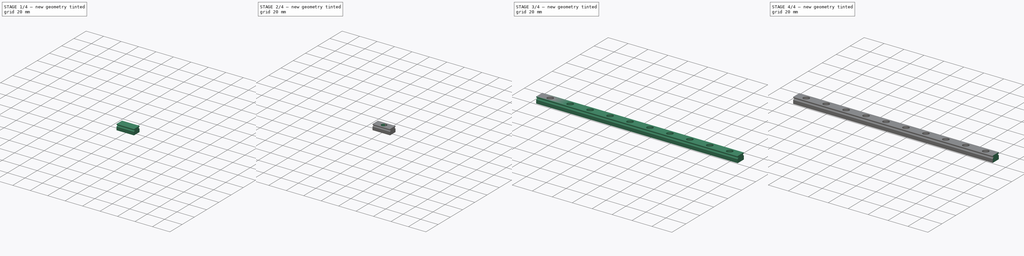
[diagram: build sequence overview — one tinted view per stage of 4, left to right]
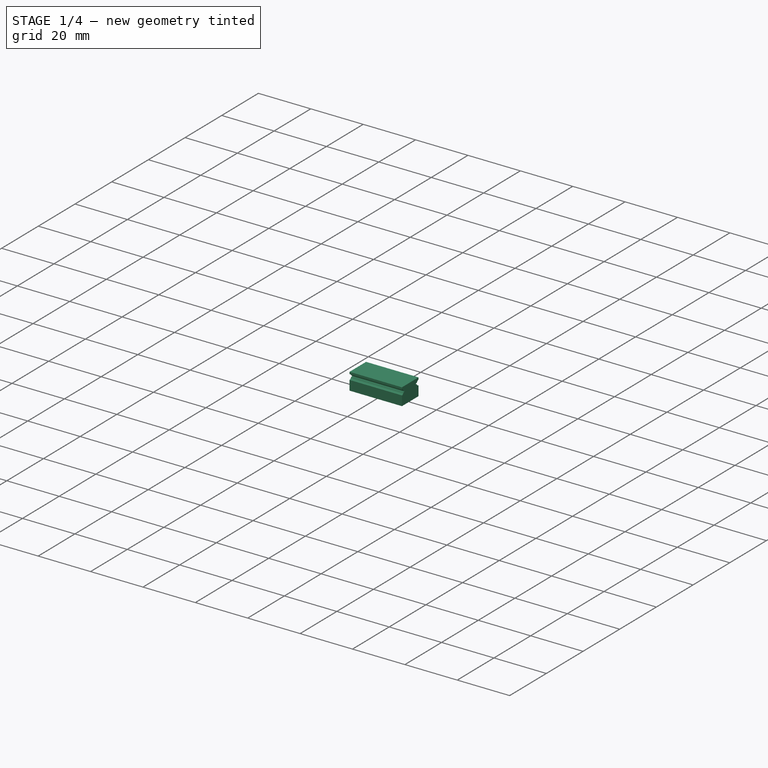
[diagram: stage 1 of 4 — iso view after this stage's code; geometry added in this stage tinted green]
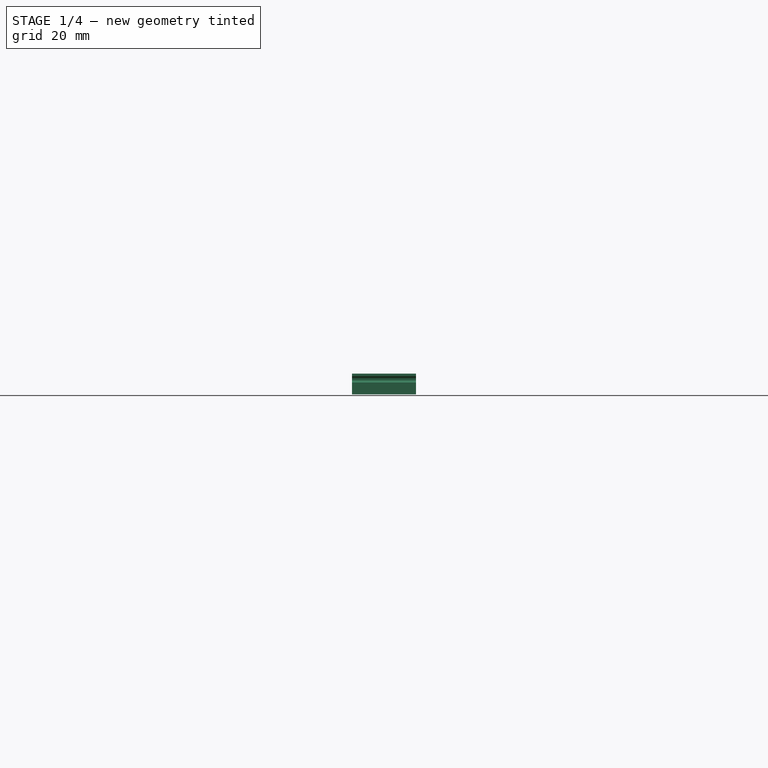
[diagram: stage 1 of 4 — front view after this stage's code; geometry added in this stage tinted green]
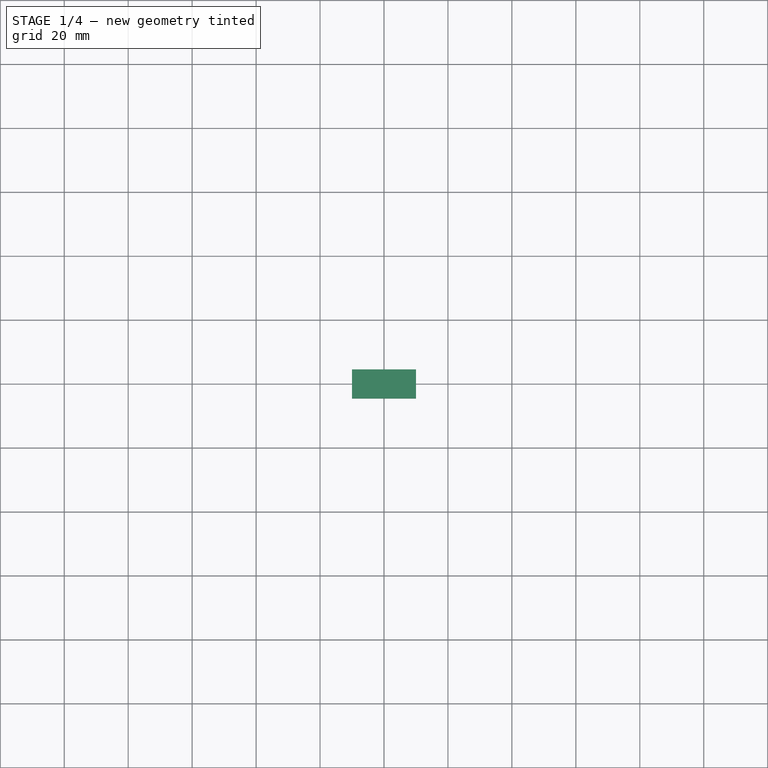
[diagram: stage 1 of 4 — top view after this stage's code; geometry added in this stage tinted green]
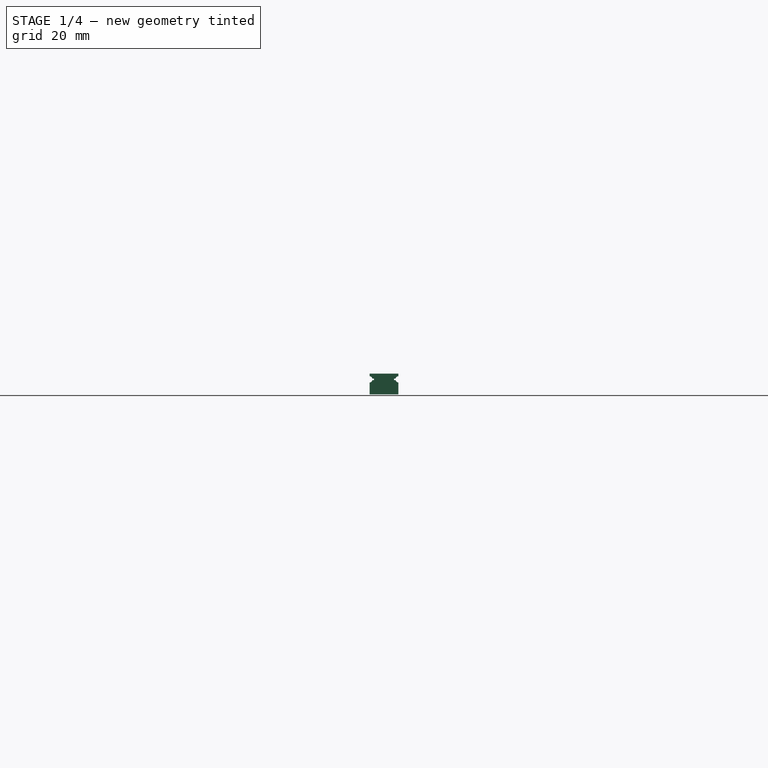
[diagram: stage 1 of 4 — right view after this stage's code; geometry added in this stage tinted green]
FCSTD DOCUMENT  (FreeCAD 0.20R29410 (Git))
Label: mgn9
License: Public Domain
LicenseURL: http://en.wikipedia.org/wiki/Public_domain
objects: PartDesign::Pocket×5, Sketcher::SketchObject×4, PartDesign::Pad×3, App::TextDocument×2, PartDesign::Plane×1, PartDesign::Chamfer×1, Spreadsheet::Sheet×1, PartDesign::LinearPattern×1, Part::Feature×1, PartDesign::Body×1, App::Part×1
note: 26 computed .brp shape members not serialized (recipe doc carries the construction recipe); baked Part::Feature solids carry a one-line shape summary decoded from their .brp

FEATURE [Sketcher::SketchObject] Sketch
  FullyConstrained = true
  MapMode = 5
  Placement = pos=(0,0,0) rot=(0.57735,0.57735,0.57735;2.0944rad)
  Support = -> [YZ_Plane]
  sketch-geometry (4):
    g0: LineSegment StartX=-4.5 StartY=0 StartZ=0 EndX=4.5 EndY=0 EndZ=0
    g1: LineSegment StartX=4.5 StartY=0 StartZ=0 EndX=4.5 EndY=6.5 EndZ=0
    g2: LineSegment StartX=4.5 StartY=6.5 StartZ=0 EndX=-4.5 EndY=6.5 EndZ=0
    g3: LineSegment StartX=-4.5 StartY=6.5 StartZ=0 EndX=-4.5 EndY=0 EndZ=0
  constraints (11):
    c: Coincident(g0,g1)
    c: Coincident(g1,g2)
    c: Coincident(g2,g3)
    c: Coincident(g3,g0)
    c: Horizontal(g0)
    c: Horizontal(g2)
    c: Vertical(g1)
    c: Vertical(g3)
    c: Symmetric(g0,g0,g-1)
    c: DistanceX(g0,g0) = 9  'width'
    c: DistanceY(g1,g1) = 6.5  'height'
FEATURE [PartDesign::Pad] Pad
  Direction = (1,-2e-16,3e-16)
  Length = 20
  Length2 = 10
  Midplane = true
  Placement = pos=(0,0,0) rot=(0.57735,0.57735,0.57735;2.0944rad)
  Profile = -> Sketch
  ReferenceAxis = -> Sketch [N_Axis]
  Type = 0
  expr: Length = Spreadsheet.piece_length
FEATURE [Sketcher::SketchObject] Sketch001
  FullyConstrained = true
  MapMode = 5
  Placement = pos=(0,0,0) rot=(-0.57735,0.57735,0.57735;4.18879rad)
  Support = -> [YZ_Plane]
  expr: Constraints[13] = 6.5 - 1.8
  sketch-geometry (10):
    g0: ArcOfCircle CenterX=-4.6 CenterY=4.7 CenterZ=0 NormalX=0 NormalY=0 NormalZ=1 AngleXU=0 Radius=1 StartAngle=0.25268 EndAngle=6.03051
    g1: LineSegment StartX=-3.63175 StartY=4.95 StartZ=0 EndX=-3.13175 EndY=4.95 EndZ=0
    g2: LineSegment StartX=-3.13175 StartY=4.95 StartZ=0 EndX=-3.13175 EndY=4.45 EndZ=0
    g3: LineSegment StartX=-3.13175 StartY=4.45 StartZ=0 EndX=-3.63175 EndY=4.45 EndZ=0
    g4: LineSegment StartX=-4.6 StartY=4.7 StartZ=0 EndX=-3.13175 EndY=4.7 EndZ=0
    g5: ArcOfCircle CenterX=4.6 CenterY=4.7 CenterZ=0 NormalX=0 NormalY=0 NormalZ=1 AngleXU=0 Radius=1 StartAngle=3.39427 EndAngle=9.1721
    g6: LineSegment StartX=3.63175 StartY=4.95 StartZ=0 EndX=3.13175 EndY=4.95 EndZ=0
    g7: LineSegment StartX=3.13175 StartY=4.95 StartZ=0 EndX=3.13175 EndY=4.45 EndZ=0
    g8: LineSegment StartX=3.13175 StartY=4.45 StartZ=0 EndX=3.63175 EndY=4.45 EndZ=0
    g9: LineSegment StartX=4.6 StartY=4.7 StartZ=0 EndX=3.13175 EndY=4.7 EndZ=0
  constraints (29):
    c: Horizontal(g1)
    c: Coincident(g2,g1)
    c: Vertical(g2)
    c: Coincident(g3,g2)
    c: Horizontal(g3)
    c: Coincident(g4,g0)
    c: Horizontal(g4)
    c: Symmetric(g2,g1,g4)
    c: Coincident(g0,g3)
    c: Coincident(g0,g1)
    c: DistanceY(g2,g2) = 0.5
    c: DistanceX(g1,g1) = 0.5
    c: Diameter(g0) = 2
    c: DistanceY(g-1,g0) = 4.7
    c: DistanceX(g0,g-1) = 4.6
    c: Horizontal(g6)
    c: Coincident(g7,g6)
    c: Vertical(g7)
    c: Coincident(g8,g7)
    c: Horizontal(g8)
    c: Coincident(g9,g5)
    c: Horizontal(g9)
    c: Symmetric(g7,g6,g9)
    c: Coincident(g5,g8)
    c: Coincident(g5,g6)
    c: Diameter(g5) = 2
    c: Symmetric(g4,g9,g-2)
    c: Equal(g2,g7)
    c: Equal(g1,g6)
FEATURE [PartDesign::Pocket] Pocket  label="Balls cut"
  BaseFeature = -> Pad
  Direction = (1,-2e-16,3e-16)
  Length = 5
  Length2 = 5
  Midplane = true
  Placement = pos=(0,0,0) rot=(0.57735,0.57735,0.57735;2.0944rad)
  Profile = -> Sketch001
  ReferenceAxis = -> Sketch001 [N_Axis]
  Type = 1
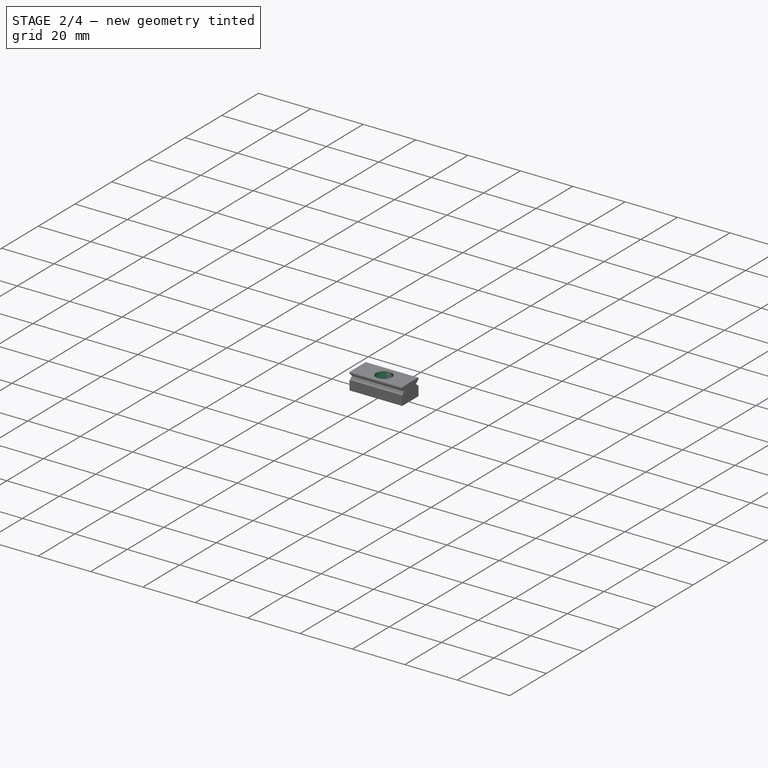
[diagram: stage 2 of 4 — iso view after this stage's code; geometry added in this stage tinted green]
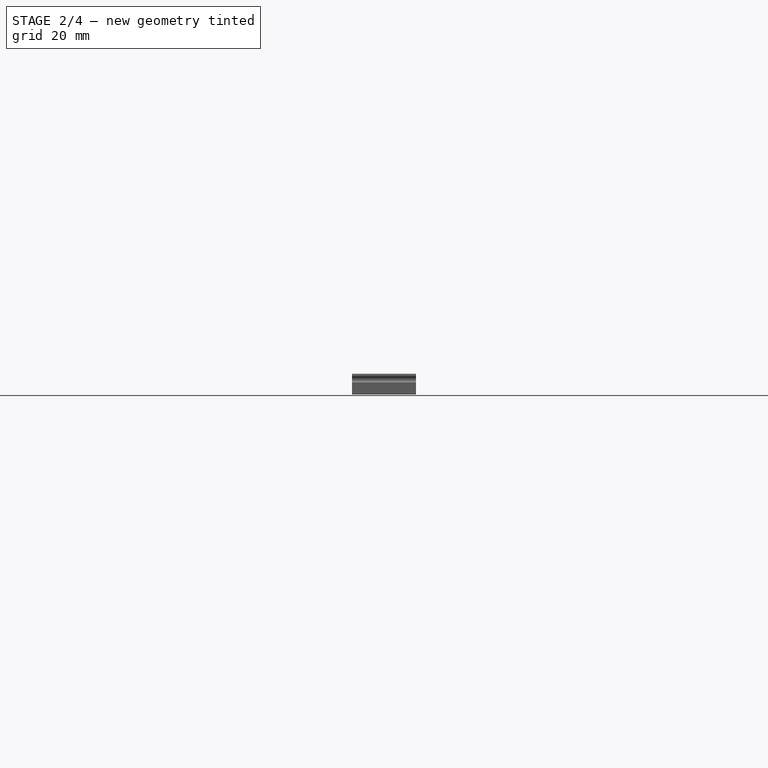
[diagram: stage 2 of 4 — front view after this stage's code; geometry added in this stage tinted green]
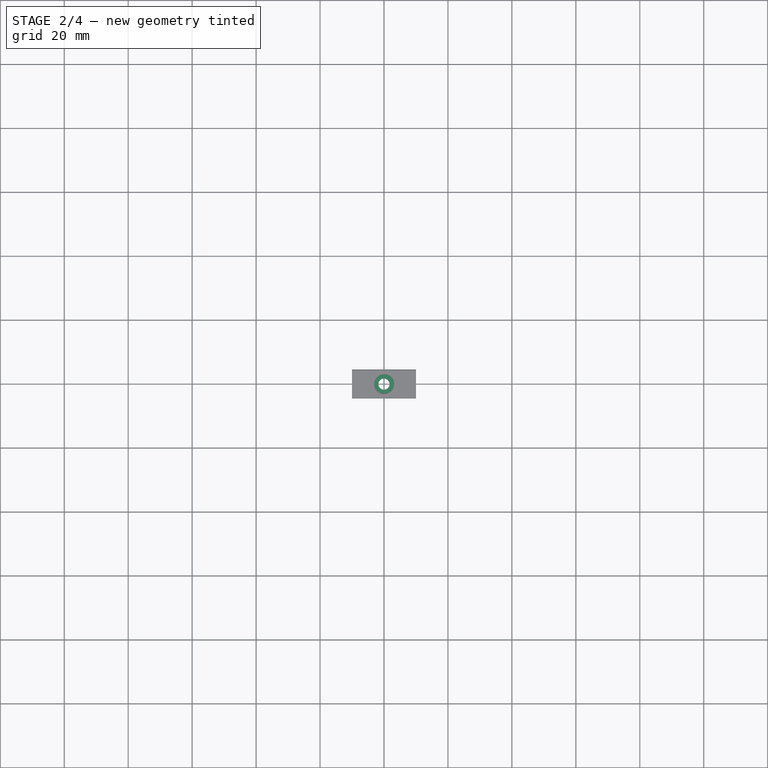
[diagram: stage 2 of 4 — top view after this stage's code; geometry added in this stage tinted green]
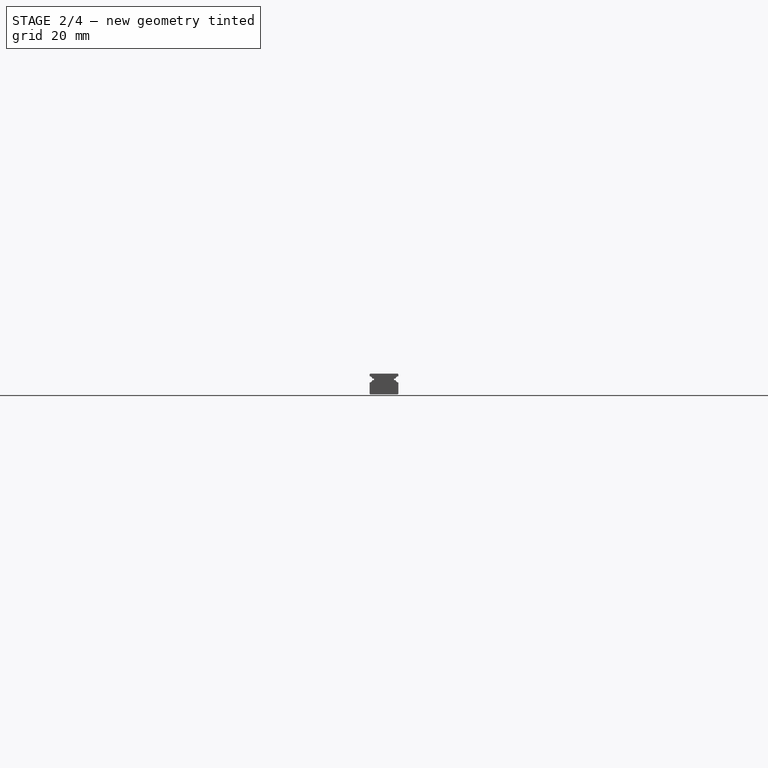
[diagram: stage 2 of 4 — right view after this stage's code; geometry added in this stage tinted green]
FEATURE [Sketcher::SketchObject] Sketch002
  FullyConstrained = true
  MapMode = 5
  Support = -> [XY_Plane]
  sketch-geometry (1):
    g0: Circle CenterX=0 CenterY=0 CenterZ=0 NormalX=0 NormalY=0 NormalZ=1 AngleXU=0 Radius=1.75
  constraints (2):
    c: Coincident(g0,g-1)
    c: Diameter(g0) = 3.5
FEATURE [PartDesign::Pocket] Pocket001  label="Screw hole"
  BaseFeature = -> Pocket
  Direction = (0,0,-1)
  Length = 5
  Length2 = 5
  Midplane = true
  Placement = pos=(0,0,0) rot=(0.57735,0.57735,0.57735;2.0944rad)
  Profile = -> Sketch002
  ReferenceAxis = -> Sketch002 [N_Axis]
  Type = 1
FEATURE [PartDesign::Plane] DatumPlane
  AttachmentOffset = pos=(0,0,6.5) rot=(0,0,1;0rad)
  Length = 235.736
  MapMode = 5
  Placement = pos=(0,0,6.5) rot=(0,0,1;0rad)
  ResizeMode = 0
  Support = -> [XY_Plane]
  Width = 70.7364
  expr: .AttachmentOffset.Base.z = Sketch.Constraints.height
FEATURE [Sketcher::SketchObject] Sketch003
  FullyConstrained = true
  MapMode = 5
  Placement = pos=(0,0,6.5) rot=(0,0,1;0rad)
  Support = -> [DatumPlane]
  sketch-geometry (1):
    g0: Circle CenterX=0 CenterY=0 CenterZ=0 NormalX=0 NormalY=0 NormalZ=1 AngleXU=0 Radius=3
  constraints (2):
    c: Coincident(g0,g-1)
    c: Diameter(g0) = 6
FEATURE [PartDesign::Pocket] Pocket002  label="Screw head cut"
  BaseFeature = -> Pocket001
  Direction = (0,0,-1)
  Length = 3.5
  Length2 = 5
  Placement = pos=(0,0,0) rot=(0.57735,0.57735,0.57735;2.0944rad)
  Profile = -> Sketch003
  ReferenceAxis = -> Sketch003 [N_Axis]
  Type = 0
FEATURE [PartDesign::Chamfer] Chamfer
  Angle = 45
  Base = -> Pocket002 [Edge1,Edge4,Edge5,Edge45,Edge46,Edge47]
  BaseFeature = -> Pocket002
  ChamferType = 0
  FlipDirection = false
  Placement = pos=(0,0,0) rot=(0.57735,0.57735,0.57735;2.0944rad)
  Size = 0.2
  Size2 = 1
  SupportTransform = false
  UseAllEdges = false
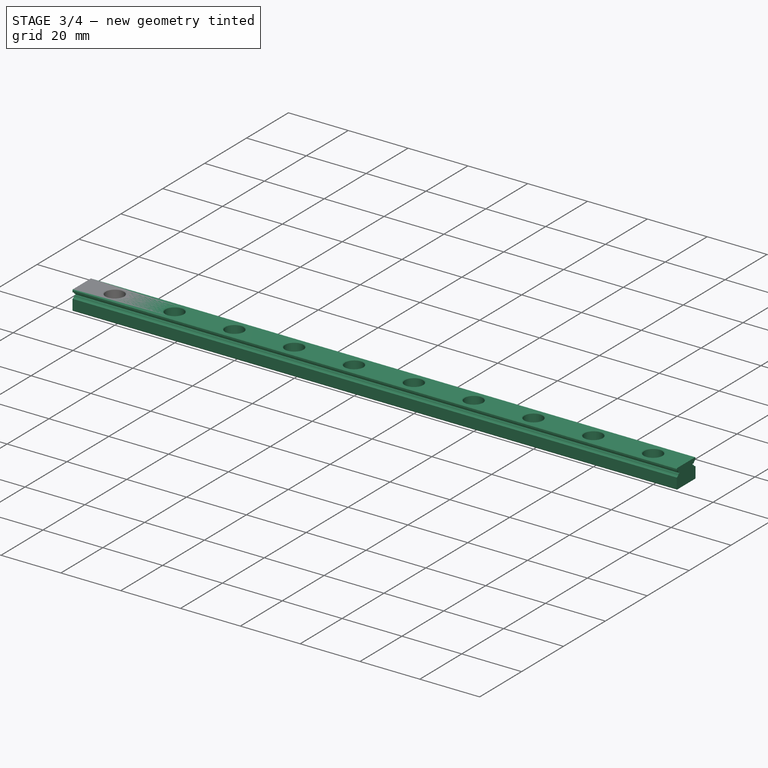
[diagram: stage 3 of 4 — iso view after this stage's code; geometry added in this stage tinted green]
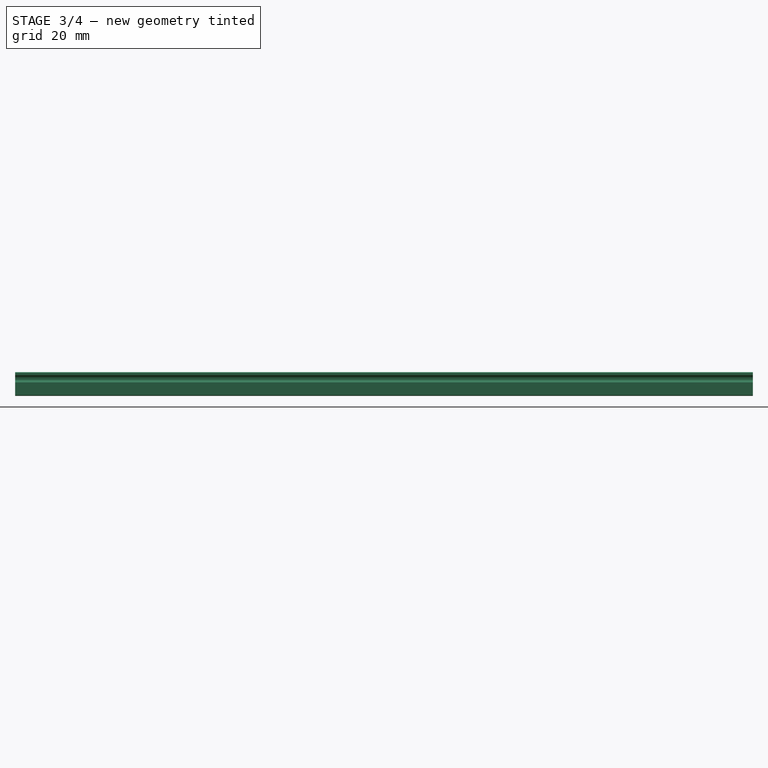
[diagram: stage 3 of 4 — front view after this stage's code; geometry added in this stage tinted green]
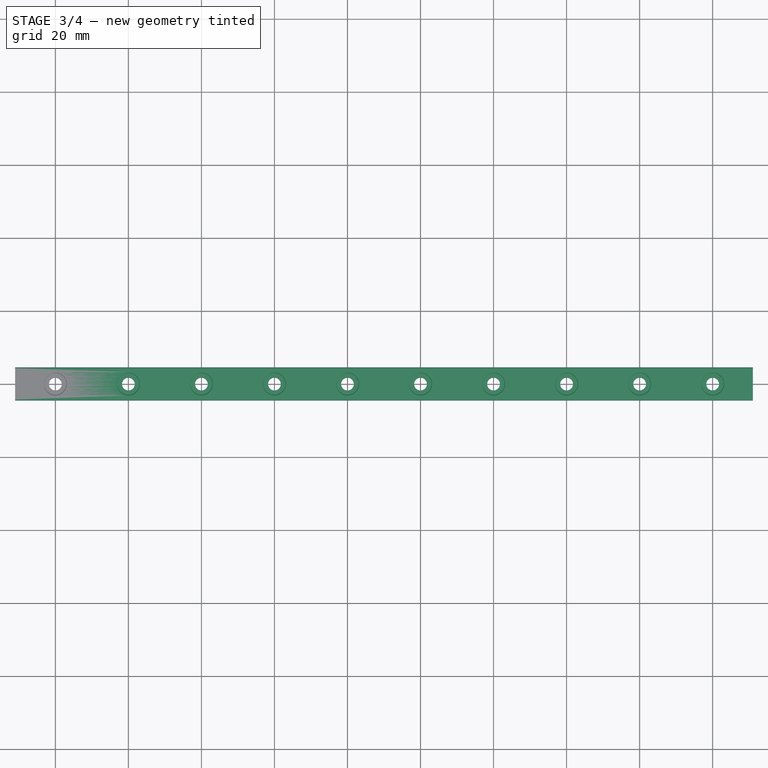
[diagram: stage 3 of 4 — top view after this stage's code; geometry added in this stage tinted green]
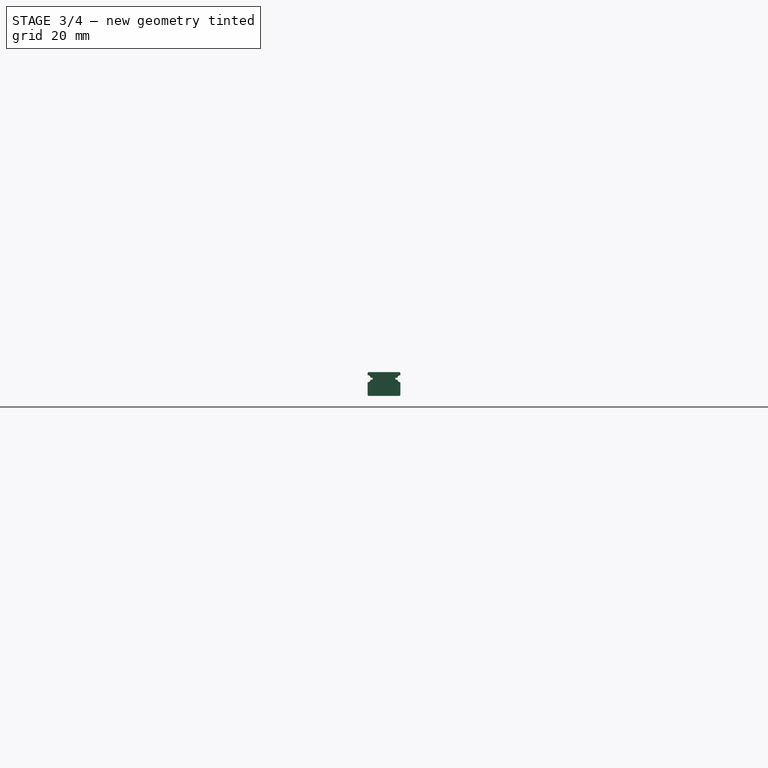
[diagram: stage 3 of 4 — right view after this stage's code; geometry added in this stage tinted green]
FEATURE [Spreadsheet::Sheet] Spreadsheet
  cells = A1=Length, mm; B1=Длина, мм; C1(length)=200; A2=Piece length, mm; B2=Длина куска, мм; C2(piece_length)=20; A3=Piece number; B3=Количество целых кусков; C3(pieces)==ceil(length / C2); D3==length / C2; A4=Cut, mm; B4=Обрезка, мм; C4(cut)==piece_length * pieces - length
FEATURE [PartDesign::LinearPattern] LinearPattern
  BaseFeature = -> Chamfer
  Direction = -> X_Axis
  Length = 180
  Occurrences = 10
  Originals = -> [Pad,Pocket,Pocket001,Pocket002,Chamfer]
  Placement = pos=(0,0,0) rot=(0.57735,0.57735,0.57735;2.0944rad)
  Refine = true
  expr: Length = Spreadsheet.piece_length * (Spreadsheet.pieces - 1)
  expr: Occurrences = Spreadsheet.pieces
FEATURE [Part::Feature] Part002001  label="Hiwin block MGN9H"
  shape: bbox 40.67 x 20.01 x 8.005 mm, 245 faces, 9 solids (baked)
FEATURE [PartDesign::Pad] Pad002  label="fix_zero_cut1"
  BaseFeature = -> LinearPattern
  Direction = (-1,2e-16,-1.6e-15)
  Length = 1
  Length2 = 10
  Placement = pos=(0,0,0) rot=(0.57735,0.57735,0.57735;2.0944rad)
  Profile = -> LinearPattern [Face3]
  Refine = true
  Type = 0
FEATURE [PartDesign::Pad] Pad003  label="fix_zero_cut2"
  BaseFeature = -> Pad002
  Direction = (1,1e-16,8e-16)
  Length = 1
  Length2 = 10
  Placement = pos=(0,0,0) rot=(0.57735,0.57735,0.57735;2.0944rad)
  Profile = -> Pad002 [Face1]
  Refine = true
  Type = 0
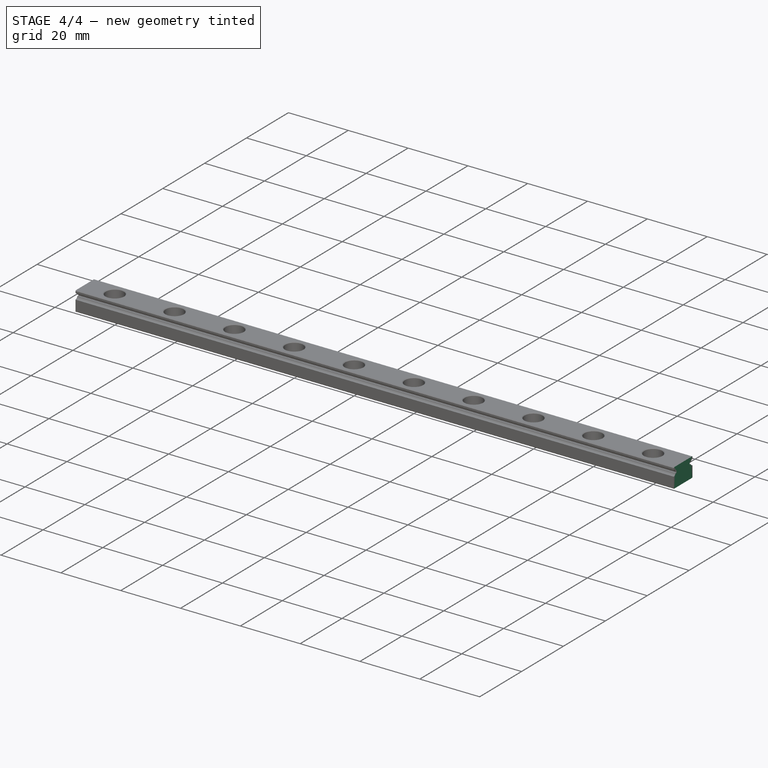
[diagram: stage 4 of 4 — iso view after this stage's code; geometry added in this stage tinted green]
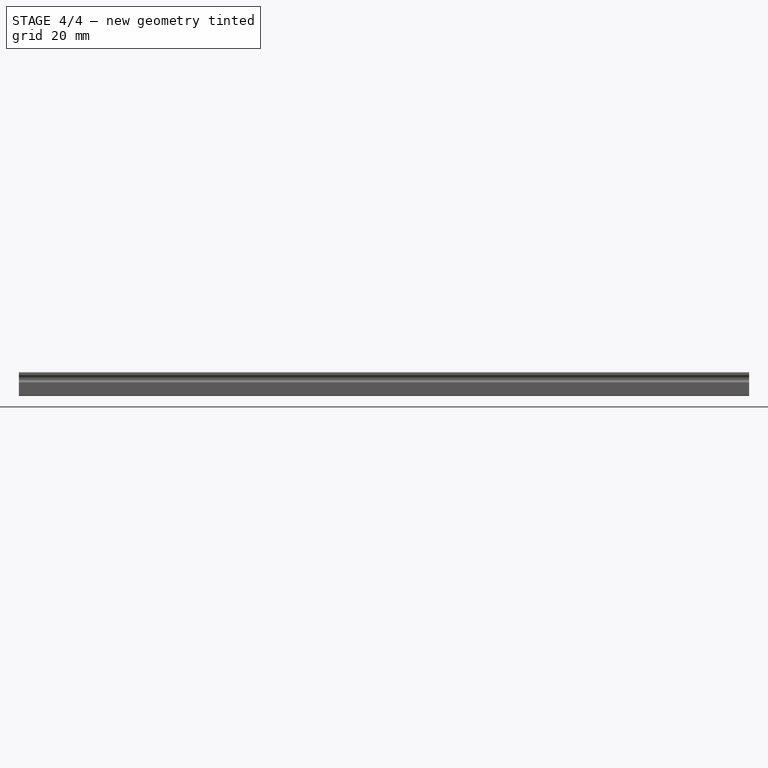
[diagram: stage 4 of 4 — front view after this stage's code; geometry added in this stage tinted green]
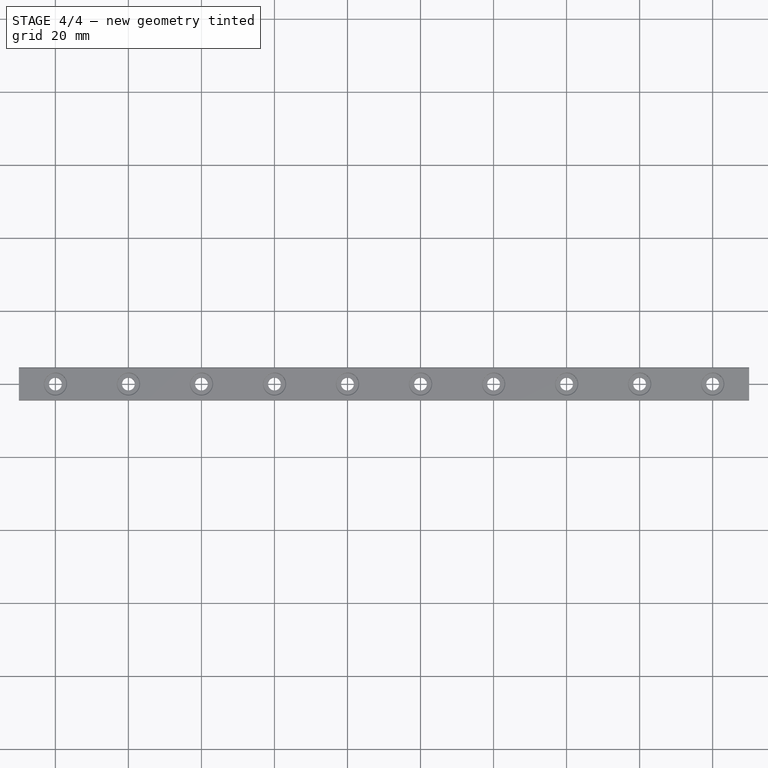
[diagram: stage 4 of 4 — top view after this stage's code; geometry added in this stage tinted green]
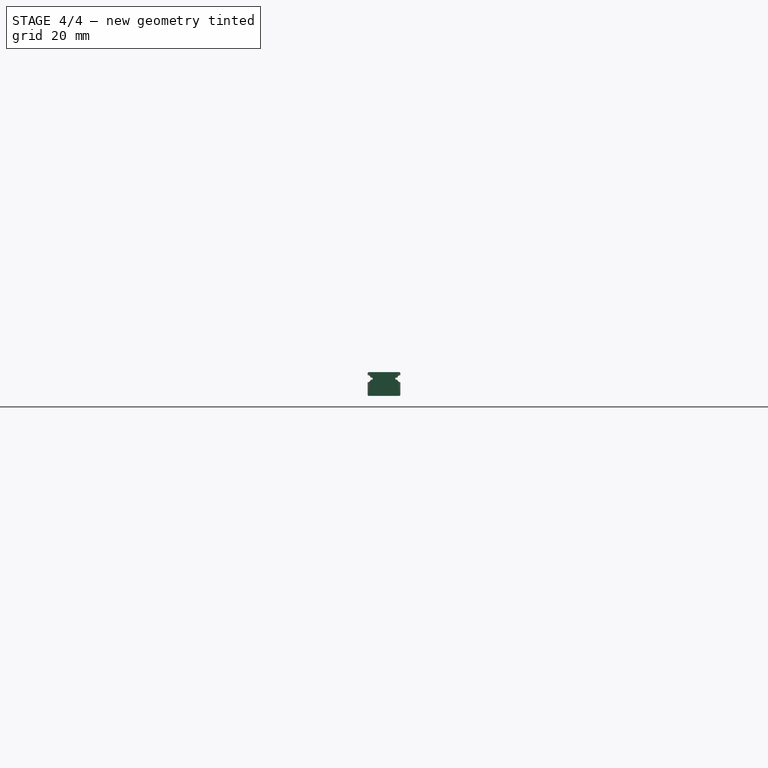
[diagram: stage 4 of 4 — right view after this stage's code; geometry added in this stage tinted green]
FEATURE [PartDesign::Pocket] Pocket003
  BaseFeature = -> Pad003
  Direction = (-1,-1e-16,-1.1e-15)
  Length = 1
  Length2 = 5
  Placement = pos=(0,0,0) rot=(0.57735,0.57735,0.57735;2.0944rad)
  Profile = -> Pad003 [Face3]
  Type = 0
  expr: Length = Spreadsheet.cut / 2 + 1
FEATURE [PartDesign::Pocket] Pocket004
  BaseFeature = -> Pocket003
  Direction = (1,-2e-16,2.6e-15)
  Length = 1
  Length2 = 5
  Placement = pos=(0,0,0) rot=(0.57735,0.57735,0.57735;2.0944rad)
  Profile = -> Pocket003 [Face1]
  Type = 0
  expr: Length = Spreadsheet.cut / 2 + 1
FEATURE [PartDesign::Body] Body  label="Hiwin MGNR9"
  Group = -> [Sketch,Pad,Sketch001,Pocket,Sketch002,Pocket001,DatumPlane,Sketch003,Pocket002,Chamfer,LinearPattern,Pad002,Pad003,Pocket003,Pocket004]
  Origin = -> Origin
  Tip = -> Pocket004
FEATURE [App::TextDocument] Text_document  label="Description"
FEATURE [App::TextDocument] Text_document001  label="Описание"
  Text = https://uni3d.store/viewtopic.php?p=1476#p1476\n\nРасшифровка маркировки кареток (линейных подшипников) HIWIN MGN9HZ0HM:\n	Серия: MGN – каретка миниатюрной рельсовой направляющей;\n	Типоразмер: 9 (под ширину рельсовой направляющей 9 мм);\n	Тип каретки: H – длинная; базовая динамическая нагрузка C - 2,55 kN, базовая статическая нагрузка C0 - 4,02 kN;\n	Натяг: Z0 – очень легкий (равен 0);\n	Класс точности: H\n	Исполнение каретки: M – нержавеющая сталь.\n\n\nРасшифровка маркировки рельс (линейных направляющих) HIWIN MGNR9R1200HM:\n	Серия: MGN\n	Взаимозаменяемая направляющая\n	Типоразмер: 9\n	R1200 - длина направляющей 1200 мм\n	Класс точности: H\n	Исполнение: M – нержавеющая сталь
FEATURE [App::Part] Part  label="Hiwin MGN"
  Group = -> [Body,Spreadsheet,Part002001,Text_document,Text_document001]
  Origin = -> Origin001
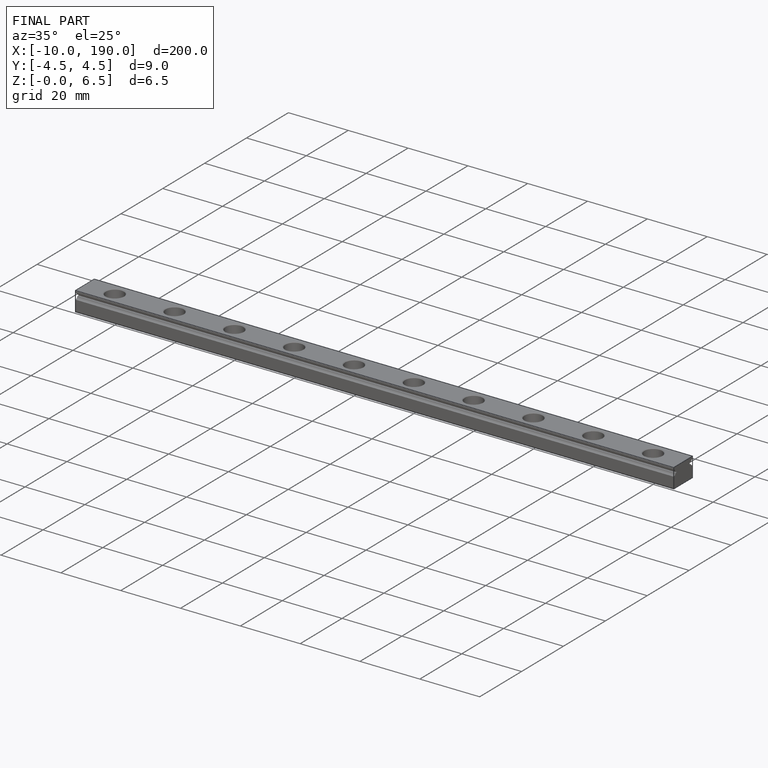
[diagram: finished part — iso view with bounding-box wireframe]
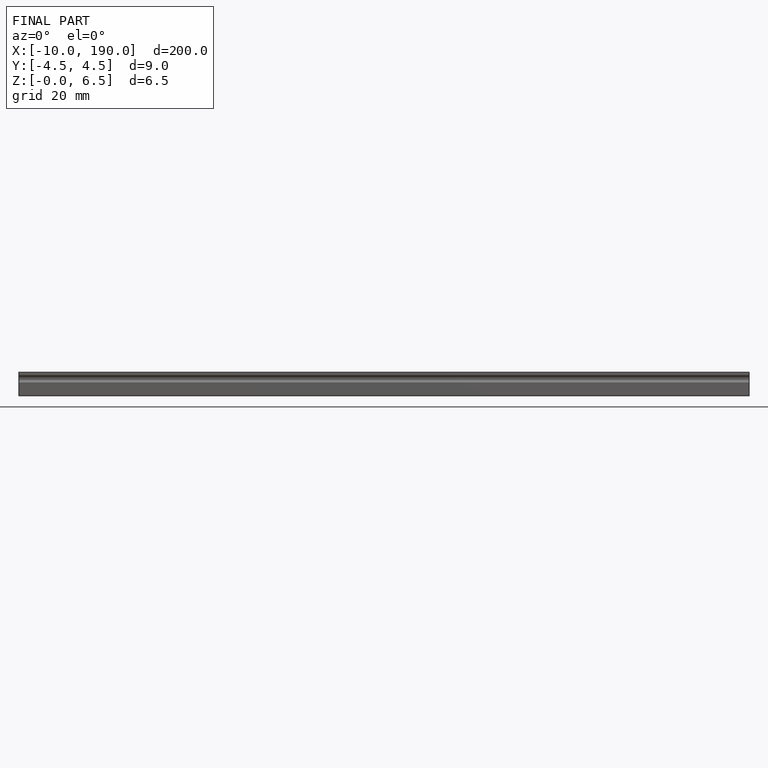
[diagram: finished part — front view with bounding-box wireframe]
